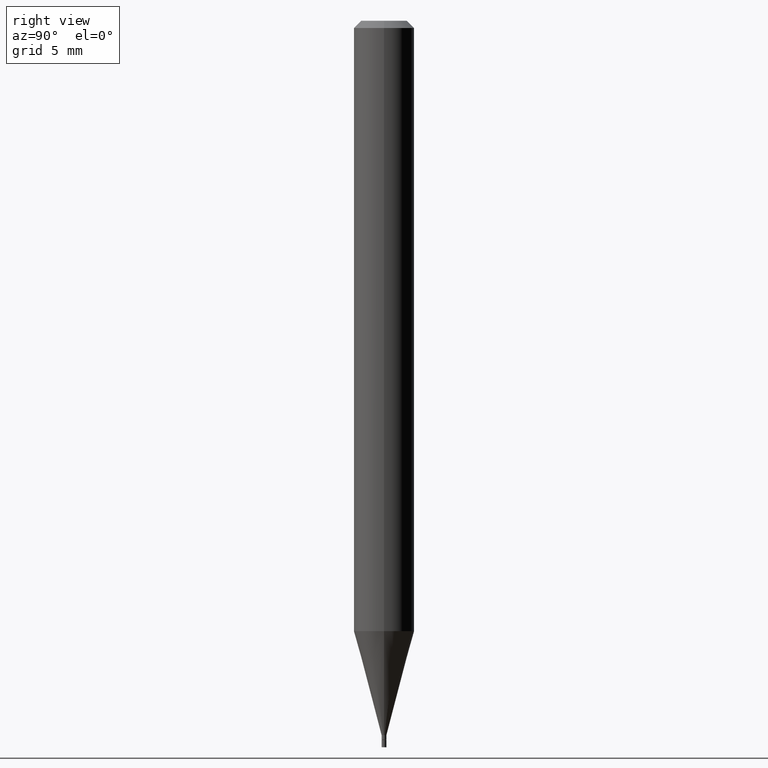
[diagram: clean part render]
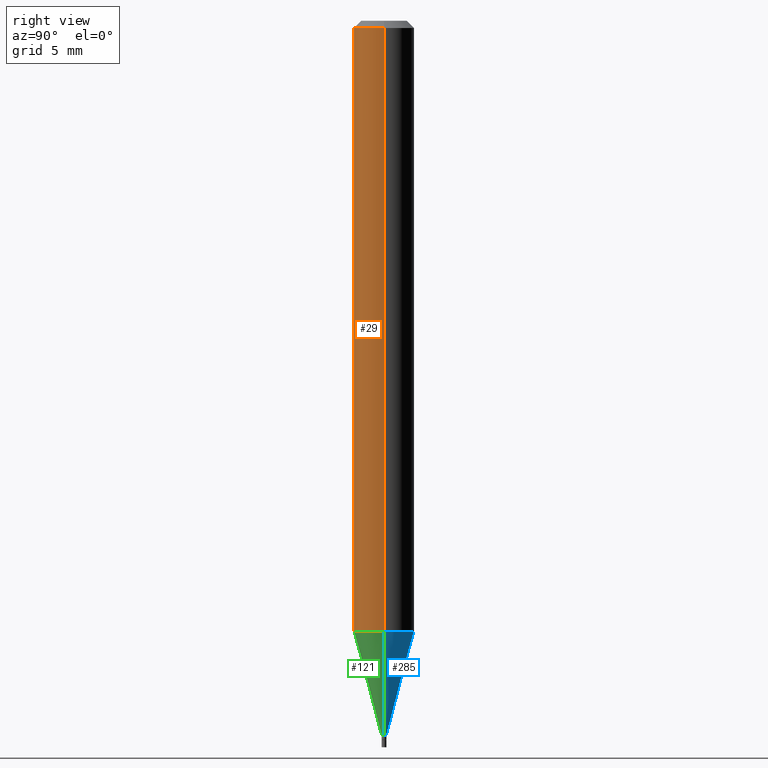
[diagram: same view with three faces highlighted in distinct colors, each labeled with its STEP entity id]
A machine part, right view with three faces highlighted in distinct colors.
Their STEP definitions:

[orange] entity #29 — the highlighted cylindrical surface (edge-blend (fillet) strip) has radius 1.5875 mm, axis along (-0, 0, 1).
#1 = EDGE_CURVE ( 'NONE', #110, #408, #31, .T. ) ;
#17 = LINE ( 'NONE', #86, #463 ) ;
#29 = ADVANCED_FACE ( 'NONE', ( #138 ), #165, .T. ) ;
#31 = LINE ( 'NONE', #271, #333 ) ;
#86 = CARTESIAN_POINT ( 'NONE',  ( -0.06250000000000000000, 4.440892098500626162E-16, -3.074334431409316114E-30 ) ) ;
#88 = CARTESIAN_POINT ( 'NONE',  ( 0.06250000000000000000, -4.888073874380388472E-16, -0.01499999999999999944 ) ) ;
#110 = VERTEX_POINT ( 'NONE', #217 ) ;
#112 = CARTESIAN_POINT ( 'NONE',  ( -0.06250000000000000000, -1.782440797268646111E-15, -0.01499999999999999944 ) ) ;
#114 = DIRECTION ( 'NONE',  ( 1.000000000000000000, -6.982962677686266711E-15, 0.000000000000000000 ) ) ;
#138 = FACE_OUTER_BOUND ( 'NONE', #257, .T. ) ;
#146 = DIRECTION ( 'NONE',  ( -2.445468806185136597E-29, 3.491481338843145583E-15, 1.000000000000000000 ) ) ;
#147 = ORIENTED_EDGE ( 'NONE', *, *, #1, .T. ) ;
#165 = CYLINDRICAL_SURFACE ( 'NONE', #325, 0.06250000000000000000 ) ;
#167 = CARTESIAN_POINT ( 'NONE',  ( 0.000000000000000000, 0.000000000000000000, 0.000000000000000000 ) ) ;
#174 = CIRCLE ( 'NONE', #210, 0.06250000000000000000 ) ;
#175 = AXIS2_PLACEMENT_3D ( 'NONE', #189, #421, #382 ) ;
#181 = CARTESIAN_POINT ( 'NONE',  ( 3.668203209277705088E-31, -5.237222008264718399E-17, -0.01499999999999999944 ) ) ;
#189 = CARTESIAN_POINT ( 'NONE',  ( 3.082286193725132894E-29, -4.400687794154770769E-15, -1.260407078564790062 ) ) ;
#197 = VERTEX_POINT ( 'NONE', #112 ) ;
#209 = DIRECTION ( 'NONE',  ( -2.445468806185136597E-29, 3.491481338843145583E-15, 1.000000000000000000 ) ) ;
#210 = AXIS2_PLACEMENT_3D ( 'NONE', #181, #146, #114 ) ;
#217 = CARTESIAN_POINT ( 'NONE',  ( 0.06249999999999999306, -4.837122961510163228E-15, -1.260407078564790062 ) ) ;
#228 = EDGE_CURVE ( 'NONE', #381, #197, #17, .T. ) ;
#257 = EDGE_LOOP ( 'NONE', ( #322, #351, #147, #338 ) ) ;
#271 = CARTESIAN_POINT ( 'NONE',  ( 0.06250000000000000000, -4.364351673553916694E-16, 3.047610484872459871E-30 ) ) ;
#294 = EDGE_CURVE ( 'NONE', #197, #408, #174, .T. ) ;
#322 = ORIENTED_EDGE ( 'NONE', *, *, #228, .F. ) ;
#325 = AXIS2_PLACEMENT_3D ( 'NONE', #167, #209, #400 ) ;
#333 = VECTOR ( 'NONE', #420, 39.37007874015748143 ) ;
#338 = ORIENTED_EDGE ( 'NONE', *, *, #294, .F. ) ;
#351 = ORIENTED_EDGE ( 'NONE', *, *, #431, .T. ) ;
#371 = DIRECTION ( 'NONE',  ( -2.445468806185136877E-29, 3.491481338843145188E-15, 1.000000000000000000 ) ) ;
#381 = VERTEX_POINT ( 'NONE', #388 ) ;
#382 = DIRECTION ( 'NONE',  ( 1.000000000000000000, -6.982962677686262766E-15, 0.000000000000000000 ) ) ;
#388 = CARTESIAN_POINT ( 'NONE',  ( -0.06249999999999999306, -3.956598584304708153E-15, -1.260407078564790062 ) ) ;
#389 = CIRCLE ( 'NONE', #175, 0.06250000000000000000 ) ;
#400 = DIRECTION ( 'NONE',  ( 1.000000000000000000, -6.982962677686266711E-15, 4.876176775795935793E-29 ) ) ;
#408 = VERTEX_POINT ( 'NONE', #88 ) ;
#420 = DIRECTION ( 'NONE',  ( -2.445468806185136877E-29, 3.491481338843145188E-15, 1.000000000000000000 ) ) ;
#421 = DIRECTION ( 'NONE',  ( -2.445468806185136597E-29, 3.491481338843145583E-15, 1.000000000000000000 ) ) ;
#431 = EDGE_CURVE ( 'NONE', #381, #110, #389, .T. ) ;
#463 = VECTOR ( 'NONE', #371, 39.37007874015748143 ) ;

[blue] entity #285 — the highlighted conical surface has half-angle 15 deg.
#16 = ORIENTED_EDGE ( 'NONE', *, *, #247, .F. ) ;
#26 = LINE ( 'NONE', #57, #403 ) ;
#43 = CARTESIAN_POINT ( 'NONE',  ( 0.004999999999999922042, -5.184849788182071492E-15, -1.475000000000000311 ) ) ;
#46 = DIRECTION ( 'NONE',  ( -2.445468806185136597E-29, 3.491481338843145583E-15, 1.000000000000000000 ) ) ;
#57 = CARTESIAN_POINT ( 'NONE',  ( -0.004999999999999922042, -5.114407838005636380E-15, -1.475000000000000311 ) ) ;
#81 = CARTESIAN_POINT ( 'NONE',  ( -0.004999999999999922042, -4.535503211155172266E-15, -1.475000000000000311 ) ) ;
#110 = VERTEX_POINT ( 'NONE', #217 ) ;
#117 = CARTESIAN_POINT ( 'NONE',  ( 3.607066489123076592E-29, -5.149934974793640632E-15, -1.475000000000000311 ) ) ;
#125 = DIRECTION ( 'NONE',  ( 0.2588190451025213501, 1.565188264969621968E-15, 0.9659258262890682012 ) ) ;
#134 = AXIS2_PLACEMENT_3D ( 'NONE', #117, #46, #378 ) ;
#144 = DIRECTION ( 'NONE',  ( -2.445468806185136597E-29, 3.491481338843145583E-15, 1.000000000000000000 ) ) ;
#145 = ORIENTED_EDGE ( 'NONE', *, *, #428, .F. ) ;
#161 = EDGE_CURVE ( 'NONE', #235, #310, #229, .T. ) ;
#186 = FACE_OUTER_BOUND ( 'NONE', #242, .T. ) ;
#205 = AXIS2_PLACEMENT_3D ( 'NONE', #263, #144, #373 ) ;
#212 = CARTESIAN_POINT ( 'NONE',  ( 3.607066489123076592E-29, -5.149934974793640632E-15, -1.475000000000000311 ) ) ;
#217 = CARTESIAN_POINT ( 'NONE',  ( 0.06249999999999999306, -4.837122961510163228E-15, -1.260407078564790062 ) ) ;
#221 = CONICAL_SURFACE ( 'NONE', #134, 0.004999999999999922042, 0.2617993877991500740 ) ;
#229 = CIRCLE ( 'NONE', #289, 0.004999999999999922042 ) ;
#232 = LINE ( 'NONE', #458, #267 ) ;
#235 = VERTEX_POINT ( 'NONE', #43 ) ;
#239 = CIRCLE ( 'NONE', #205, 0.06250000000000000000 ) ;
#242 = EDGE_LOOP ( 'NONE', ( #316, #445, #16, #145 ) ) ;
#247 = EDGE_CURVE ( 'NONE', #110, #381, #239, .T. ) ;
#263 = CARTESIAN_POINT ( 'NONE',  ( 3.082286193725132894E-29, -4.400687794154770769E-15, -1.260407078564790062 ) ) ;
#267 = VECTOR ( 'NONE', #125, 39.37007874015747433 ) ;
#285 = ADVANCED_FACE ( 'NONE', ( #186 ), #221, .T. ) ;
#289 = AXIS2_PLACEMENT_3D ( 'NONE', #212, #413, #411 ) ;
#310 = VERTEX_POINT ( 'NONE', #81 ) ;
#316 = ORIENTED_EDGE ( 'NONE', *, *, #161, .T. ) ;
#342 = DIRECTION ( 'NONE',  ( -0.2588190451025213501, 5.211531920934551042E-15, 0.9659258262890682012 ) ) ;
#373 = DIRECTION ( 'NONE',  ( 1.000000000000000000, -6.982962677686262766E-15, 0.000000000000000000 ) ) ;
#378 = DIRECTION ( 'NONE',  ( 1.000000000000000000, -6.982962677686247778E-15, 0.000000000000000000 ) ) ;
#381 = VERTEX_POINT ( 'NONE', #388 ) ;
#388 = CARTESIAN_POINT ( 'NONE',  ( -0.06249999999999999306, -3.956598584304708153E-15, -1.260407078564790062 ) ) ;
#394 = EDGE_CURVE ( 'NONE', #310, #381, #26, .T. ) ;
#403 = VECTOR ( 'NONE', #342, 39.37007874015747433 ) ;
#411 = DIRECTION ( 'NONE',  ( 1.000000000000000000, -6.982962677686247778E-15, 0.000000000000000000 ) ) ;
#413 = DIRECTION ( 'NONE',  ( -2.445468806185136597E-29, 3.491481338843145583E-15, 1.000000000000000000 ) ) ;
#428 = EDGE_CURVE ( 'NONE', #235, #110, #232, .T. ) ;
#445 = ORIENTED_EDGE ( 'NONE', *, *, #394, .T. ) ;
#458 = CARTESIAN_POINT ( 'NONE',  ( 0.004999999999999922042, -5.184849788182071492E-15, -1.475000000000000311 ) ) ;

[green] entity #121 — the highlighted conical surface has half-angle 15 deg.
#2 = DIRECTION ( 'NONE',  ( 1.000000000000000000, -6.982962677686247778E-15, 0.000000000000000000 ) ) ;
#9 = ORIENTED_EDGE ( 'NONE', *, *, #431, .F. ) ;
#26 = LINE ( 'NONE', #57, #403 ) ;
#39 = DIRECTION ( 'NONE',  ( -2.445468806185136597E-29, 3.491481338843145583E-15, 1.000000000000000000 ) ) ;
#43 = CARTESIAN_POINT ( 'NONE',  ( 0.004999999999999922042, -5.184849788182071492E-15, -1.475000000000000311 ) ) ;
#57 = CARTESIAN_POINT ( 'NONE',  ( -0.004999999999999922042, -5.114407838005636380E-15, -1.475000000000000311 ) ) ;
#79 = ORIENTED_EDGE ( 'NONE', *, *, #98, .T. ) ;
#81 = CARTESIAN_POINT ( 'NONE',  ( -0.004999999999999922042, -4.535503211155172266E-15, -1.475000000000000311 ) ) ;
#98 = EDGE_CURVE ( 'NONE', #310, #235, #441, .T. ) ;
#110 = VERTEX_POINT ( 'NONE', #217 ) ;
#121 = ADVANCED_FACE ( 'NONE', ( #280 ), #254, .T. ) ;
#125 = DIRECTION ( 'NONE',  ( 0.2588190451025213501, 1.565188264969621968E-15, 0.9659258262890682012 ) ) ;
#143 = EDGE_LOOP ( 'NONE', ( #397, #79, #200, #9 ) ) ;
#171 = DIRECTION ( 'NONE',  ( -2.445468806185136597E-29, 3.491481338843145583E-15, 1.000000000000000000 ) ) ;
#175 = AXIS2_PLACEMENT_3D ( 'NONE', #189, #421, #382 ) ;
#189 = CARTESIAN_POINT ( 'NONE',  ( 3.082286193725132894E-29, -4.400687794154770769E-15, -1.260407078564790062 ) ) ;
#193 = AXIS2_PLACEMENT_3D ( 'NONE', #367, #39, #215 ) ;
#200 = ORIENTED_EDGE ( 'NONE', *, *, #428, .T. ) ;
#215 = DIRECTION ( 'NONE',  ( 1.000000000000000000, -6.982962677686247778E-15, 0.000000000000000000 ) ) ;
#217 = CARTESIAN_POINT ( 'NONE',  ( 0.06249999999999999306, -4.837122961510163228E-15, -1.260407078564790062 ) ) ;
#232 = LINE ( 'NONE', #458, #267 ) ;
#235 = VERTEX_POINT ( 'NONE', #43 ) ;
#254 = CONICAL_SURFACE ( 'NONE', #452, 0.004999999999999922042, 0.2617993877991500740 ) ;
#267 = VECTOR ( 'NONE', #125, 39.37007874015747433 ) ;
#280 = FACE_OUTER_BOUND ( 'NONE', #143, .T. ) ;
#310 = VERTEX_POINT ( 'NONE', #81 ) ;
#342 = DIRECTION ( 'NONE',  ( -0.2588190451025213501, 5.211531920934551042E-15, 0.9659258262890682012 ) ) ;
#367 = CARTESIAN_POINT ( 'NONE',  ( 3.607066489123076592E-29, -5.149934974793640632E-15, -1.475000000000000311 ) ) ;
#381 = VERTEX_POINT ( 'NONE', #388 ) ;
#382 = DIRECTION ( 'NONE',  ( 1.000000000000000000, -6.982962677686262766E-15, 0.000000000000000000 ) ) ;
#388 = CARTESIAN_POINT ( 'NONE',  ( -0.06249999999999999306, -3.956598584304708153E-15, -1.260407078564790062 ) ) ;
#389 = CIRCLE ( 'NONE', #175, 0.06250000000000000000 ) ;
#394 = EDGE_CURVE ( 'NONE', #310, #381, #26, .T. ) ;
#397 = ORIENTED_EDGE ( 'NONE', *, *, #394, .F. ) ;
#403 = VECTOR ( 'NONE', #342, 39.37007874015747433 ) ;
#421 = DIRECTION ( 'NONE',  ( -2.445468806185136597E-29, 3.491481338843145583E-15, 1.000000000000000000 ) ) ;
#428 = EDGE_CURVE ( 'NONE', #235, #110, #232, .T. ) ;
#431 = EDGE_CURVE ( 'NONE', #381, #110, #389, .T. ) ;
#441 = CIRCLE ( 'NONE', #193, 0.004999999999999922042 ) ;
#443 = CARTESIAN_POINT ( 'NONE',  ( 3.607066489123076592E-29, -5.149934974793640632E-15, -1.475000000000000311 ) ) ;
#452 = AXIS2_PLACEMENT_3D ( 'NONE', #443, #171, #2 ) ;
#458 = CARTESIAN_POINT ( 'NONE',  ( 0.004999999999999922042, -5.184849788182071492E-15, -1.475000000000000311 ) ) ;